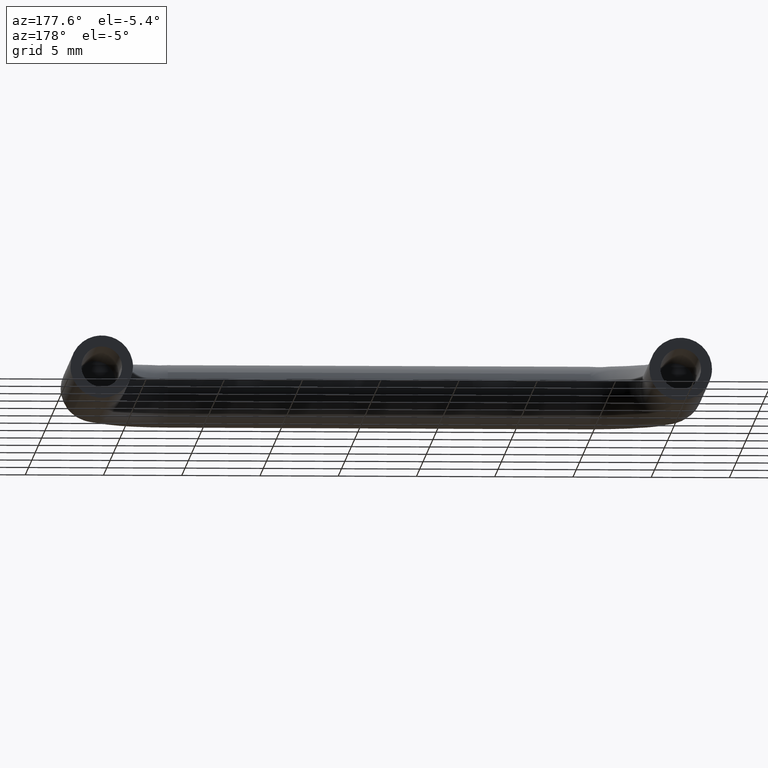
[diagram: clean part render]
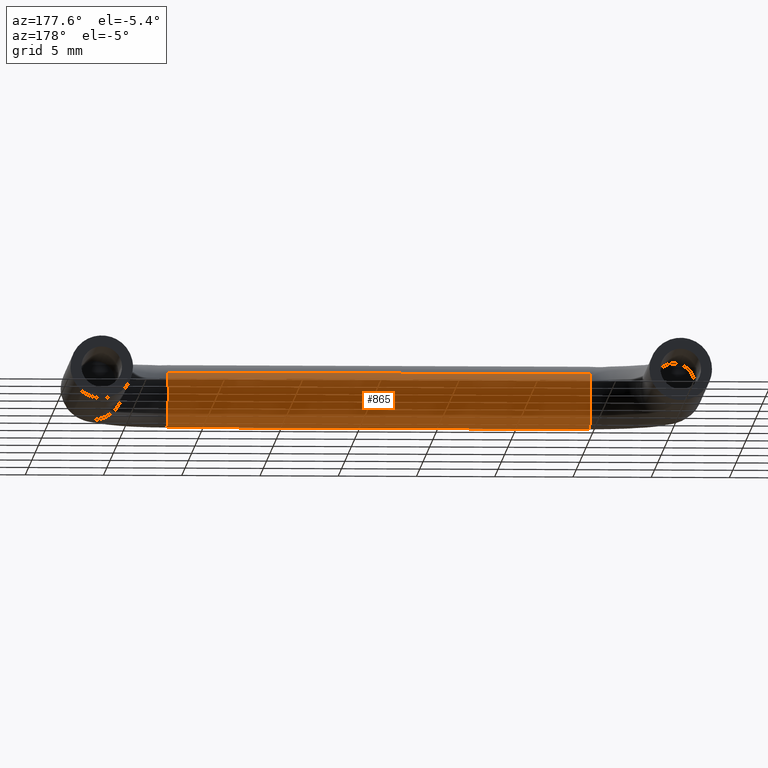
[diagram: same view with one face highlighted and labeled with its STEP entity id]
A machine part, auxiliary view. The second image highlights one B-rep face of the part: STEP entity #865.
In plain terms, the highlighted face is a freeform B-spline surface patch.
Its self-contained STEP definition (entity closure, byte-faithful):
#644=CARTESIAN_POINT('',(32.0,-18.591260098857589,1.419666119525739));
#645=VERTEX_POINT('',#644);
#661=CARTESIAN_POINT('',(5.000000000019877,-18.591260119800999,1.419666140301064));
#662=VERTEX_POINT('',#661);
#663=CARTESIAN_POINT('',(5.000000000019877,-18.591260119800999,1.419666140301064));
#664=CARTESIAN_POINT('',(32.0,-18.591260098857589,1.419666119525739));
#665=QUASI_UNIFORM_CURVE('',1,(#663,#664),.UNSPECIFIED.,.F.,.U.);
#666=EDGE_CURVE('',#662,#645,#665,.T.);
#685=CARTESIAN_POINT('',(4.999999182295871,-21.325239809866911,-1.497911695108569));
#686=VERTEX_POINT('',#685);
#700=CARTESIAN_POINT('',(32.0,-21.325239806286259,-1.497911698276708));
#701=VERTEX_POINT('',#700);
#702=CARTESIAN_POINT('',(4.999999182295871,-21.325239809866911,-1.497911695108569));
#703=CARTESIAN_POINT('',(32.0,-21.325239806286259,-1.497911698276708));
#704=QUASI_UNIFORM_CURVE('',1,(#702,#703),.UNSPECIFIED.,.F.,.U.);
#705=EDGE_CURVE('',#686,#701,#704,.T.);
#738=CARTESIAN_POINT('',(4.324998028318658,-21.325240096431472,-1.497911441578005));
#739=CARTESIAN_POINT('',(4.324998028318658,-19.827328654853474,-2.823151538009478));
#740=CARTESIAN_POINT('',(4.324998028318658,-18.502088558421999,-1.325240096431473));
#741=CARTESIAN_POINT('',(4.324998028318658,-17.250593514662498,0.089317726089447));
#742=CARTESIAN_POINT('',(4.324998028318658,-18.591260087566504,1.419666108321545));
#743=CARTESIAN_POINT('',(32.691875049609202,-21.325240096431472,-1.497911441578005));
#744=CARTESIAN_POINT('',(32.691875049609187,-19.827328654853460,-2.823151538009478));
#745=CARTESIAN_POINT('',(32.691875049609202,-18.502088558421988,-1.325240096431473));
#746=CARTESIAN_POINT('',(32.691875049609187,-17.250593514662498,0.089317726089447));
#747=CARTESIAN_POINT('',(32.691875049609202,-18.591260087566489,1.419666108321545));
#755=(BOUNDED_SURFACE()B_SPLINE_SURFACE(2,1,((#738,#743),(#739,#744),(#740,#745),(#741,#746),(#742,#747)),.UNSPECIFIED.,.F.,.F.,.U.)B_SPLINE_SURFACE_WITH_KNOTS((3,2,3),(2,2),(0.0,3.313708498984765,6.494868658010139),(0.0,28.366877021290549),.UNSPECIFIED.)GEOMETRIC_REPRESENTATION_ITEM()RATIONAL_B_SPLINE_SURFACE(((1.0,1.0),(0.707106781186548,0.707106781186548),(1.0,1.0),(0.718822509939086,0.718822509939086),(0.977505800795127,0.977505800795127)))REPRESENTATION_ITEM('')SURFACE());
#756=CARTESIAN_POINT('',(32.0,-18.0,0.0));
#757=VERTEX_POINT('',#756);
#758=CARTESIAN_POINT('',(31.999999999999993,-18.591260098857589,1.419666119525738));
#759=CARTESIAN_POINT('',(32.0,-18.000000000000007,0.832956562603464));
#760=CARTESIAN_POINT('',(32.0,-18.0,0.0));
#768=(BOUNDED_CURVE()B_SPLINE_CURVE(2,(#758,#759,#760),.UNSPECIFIED.,.F.,.U.)B_SPLINE_CURVE_WITH_KNOTS((3,3),(0.874417114703642,1.0),.UNSPECIFIED.)CURVE()GEOMETRIC_REPRESENTATION_ITEM()RATIONAL_B_SPLINE_CURVE((0.853556574977730,0.852870497990676,1.0))REPRESENTATION_ITEM(''));
#769=EDGE_CURVE('',#645,#757,#768,.T.);
#770=ORIENTED_EDGE('',*,*,#769,.T.);
#771=CARTESIAN_POINT('',(32.000000000309427,-19.974867919650571,-1.999842088400309));
#772=VERTEX_POINT('',#771);
#773=CARTESIAN_POINT('',(32.0,-18.0,0.0));
#774=CARTESIAN_POINT('',(32.000000000000007,-18.0,-1.975023858663560));
#775=CARTESIAN_POINT('',(32.000000000309427,-19.974867919650574,-1.999842088400309));
#783=(BOUNDED_CURVE()B_SPLINE_CURVE(2,(#773,#774,#775),.UNSPECIFIED.,.F.,.U.)B_SPLINE_CURVE_WITH_KNOTS((3,3),(0.0,0.247784295819239),.UNSPECIFIED.)CURVE()GEOMETRIC_REPRESENTATION_ITEM()RATIONAL_B_SPLINE_CURVE((1.0,0.709702640104314,0.994854295408121))REPRESENTATION_ITEM(''));
#784=EDGE_CURVE('',#757,#772,#783,.T.);
#785=ORIENTED_EDGE('',*,*,#784,.T.);
#786=CARTESIAN_POINT('',(32.000000000309427,-19.974867919650567,-1.999842088400309));
#787=CARTESIAN_POINT('',(31.999999999999996,-19.987433463433430,-2.0));
#788=CARTESIAN_POINT('',(32.0,-20.0,-2.0));
#789=CARTESIAN_POINT('',(31.999999999999996,-20.757731774383874,-2.000000000000000));
#790=CARTESIAN_POINT('',(31.999999999999996,-21.325239806286262,-1.497911698276709));
#798=(BOUNDED_CURVE()B_SPLINE_CURVE(2,(#786,#787,#788,#789,#790),.UNSPECIFIED.,.F.,.U.)B_SPLINE_CURVE_WITH_KNOTS((3,2,3),(0.247784295819239,0.250000000000000,0.365779829550916),.UNSPECIFIED.)CURVE()GEOMETRIC_REPRESENTATION_ITEM()RATIONAL_B_SPLINE_CURVE((0.994854295408121,0.997404141082234,1.0,0.864355492196637,0.854350168337204))REPRESENTATION_ITEM(''));
#799=EDGE_CURVE('',#772,#701,#798,.T.);
#800=ORIENTED_EDGE('',*,*,#799,.T.);
#801=ORIENTED_EDGE('',*,*,#705,.F.);
#802=CARTESIAN_POINT('',(4.999998076415995,-19.276704659011020,-1.864629681651536));
#803=VERTEX_POINT('',#802);
#804=CARTESIAN_POINT('',(4.999998076415995,-19.276704659011028,-1.864629681651536));
#805=CARTESIAN_POINT('',(4.999998199665956,-19.625684528366516,-1.999999999998314));
#806=CARTESIAN_POINT('',(4.999998379672770,-20.000000000000590,-1.999999999998482));
#807=CARTESIAN_POINT('',(4.999998744062953,-20.757731779851195,-1.999999999998824));
#808=CARTESIAN_POINT('',(4.999999182295871,-21.325239809866908,-1.497911695108569));
#816=(BOUNDED_CURVE()B_SPLINE_CURVE(2,(#804,#805,#806,#807,#808),.UNSPECIFIED.,.F.,.U.)B_SPLINE_CURVE_WITH_KNOTS((3,2,3),(0.188590419563113,0.250000000000000,0.365779830272935),.UNSPECIFIED.)CURVE()GEOMETRIC_REPRESENTATION_ITEM()RATIONAL_B_SPLINE_CURVE((0.891453693067869,0.928054201279426,1.0,0.864355491350739,0.854350168212415))REPRESENTATION_ITEM(''));
#817=EDGE_CURVE('',#803,#686,#816,.T.);
#818=ORIENTED_EDGE('',*,*,#817,.F.);
#819=CARTESIAN_POINT('',(5.0,-18.0,0.0));
#820=VERTEX_POINT('',#819);
#821=CARTESIAN_POINT('',(5.0,-18.0,0.0));
#822=CARTESIAN_POINT('',(4.999999038207998,-18.000000000000355,-1.369392187168714));
#823=CARTESIAN_POINT('',(4.999998076415995,-19.276704659011028,-1.864629681651536));
#831=(BOUNDED_CURVE()B_SPLINE_CURVE(2,(#821,#822,#823),.UNSPECIFIED.,.F.,.U.)B_SPLINE_CURVE_WITH_KNOTS((3,3),(0.0,0.188590419563113),.UNSPECIFIED.)CURVE()GEOMETRIC_REPRESENTATION_ITEM()RATIONAL_B_SPLINE_CURVE((1.0,0.779052579907122,0.891453693067869))REPRESENTATION_ITEM(''));
#832=EDGE_CURVE('',#820,#803,#831,.T.);
#833=ORIENTED_EDGE('',*,*,#832,.F.);
#834=CARTESIAN_POINT('',(5.000000000040116,-18.179788058653141,0.828751162037366));
#835=VERTEX_POINT('',#834);
#836=CARTESIAN_POINT('',(5.000000000040116,-18.179788058653138,0.828751162037366));
#837=CARTESIAN_POINT('',(5.0,-18.000000000000004,0.433877059606800));
#838=CARTESIAN_POINT('',(5.0,-18.0,0.0));
#846=(BOUNDED_CURVE()B_SPLINE_CURVE(2,(#836,#837,#838),.UNSPECIFIED.,.F.,.U.)B_SPLINE_CURVE_WITH_KNOTS((3,3),(0.929624510033230,1.0),.UNSPECIFIED.)CURVE()GEOMETRIC_REPRESENTATION_ITEM()RATIONAL_B_SPLINE_CURVE((0.881519651443544,0.917549984872236,1.0))REPRESENTATION_ITEM(''));
#847=EDGE_CURVE('',#835,#820,#846,.T.);
#848=ORIENTED_EDGE('',*,*,#847,.F.);
#849=CARTESIAN_POINT('',(5.000000000019877,-18.591260119801010,1.419666140301064));
#850=CARTESIAN_POINT('',(5.000000000028706,-18.331453841666921,1.161859436222239));
#851=CARTESIAN_POINT('',(5.000000000040115,-18.179788058653134,0.828751162037366));
#859=(BOUNDED_CURVE()B_SPLINE_CURVE(2,(#849,#850,#851),.UNSPECIFIED.,.F.,.U.)B_SPLINE_CURVE_WITH_KNOTS((3,3),(0.874417110250492,0.929624510033231),.UNSPECIFIED.)CURVE()GEOMETRIC_REPRESENTATION_ITEM()RATIONAL_B_SPLINE_CURVE((0.853556575026387,0.853254966922805,0.881519651443544))REPRESENTATION_ITEM(''));
#860=EDGE_CURVE('',#662,#835,#859,.T.);
#861=ORIENTED_EDGE('',*,*,#860,.F.);
#862=ORIENTED_EDGE('',*,*,#666,.T.);
#863=EDGE_LOOP('',(#770,#785,#800,#801,#818,#833,#848,#861,#862));
#864=FACE_OUTER_BOUND('',#863,.T.);
#865=ADVANCED_FACE('',(#864),#755,.T.);